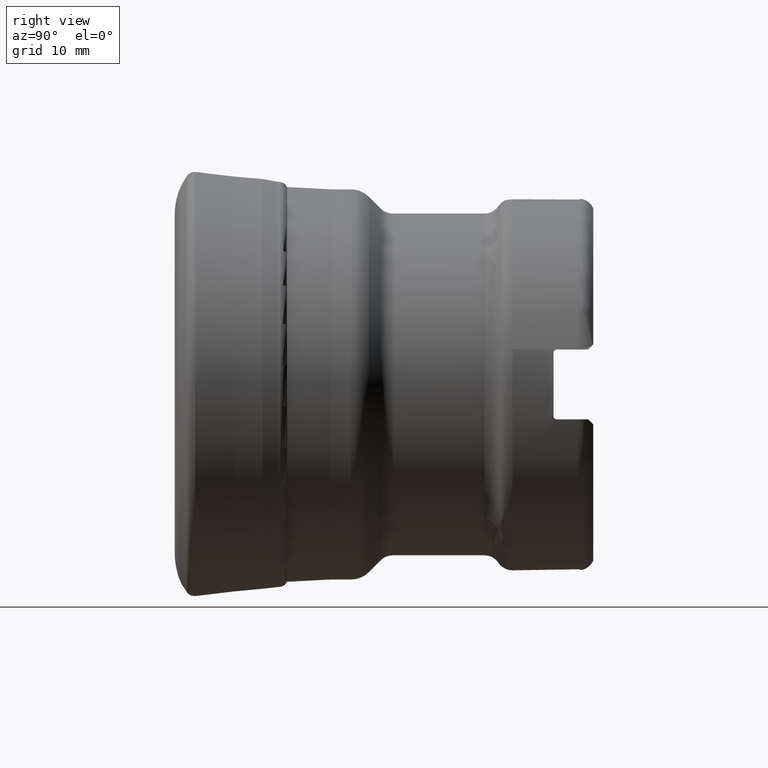
[diagram: clean part render]
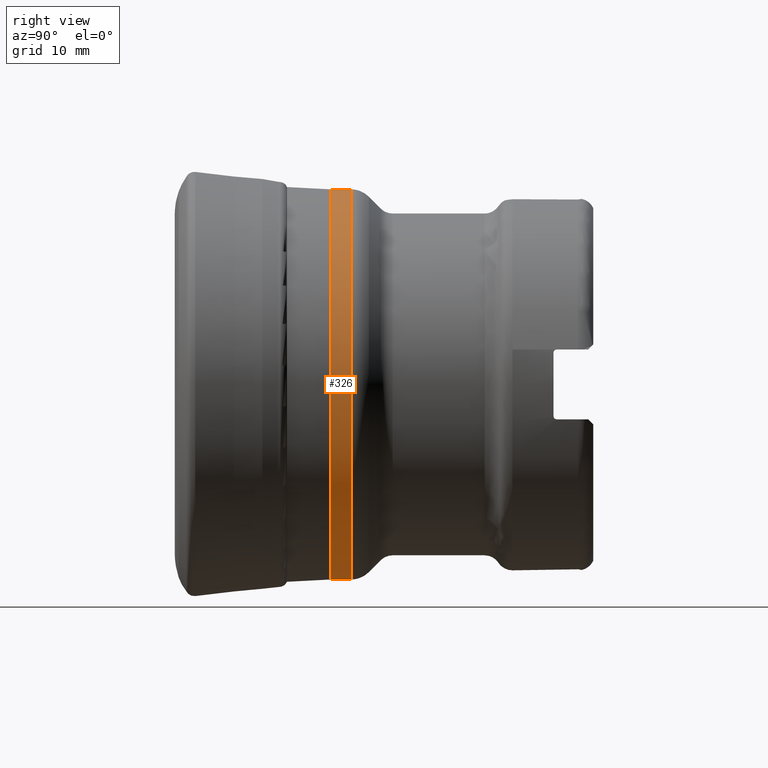
[diagram: same view with one face highlighted and labeled with its STEP entity id]
A machine part, right view. The second image highlights one B-rep face of the part: STEP entity #326.
In plain terms, the highlighted cylindrical surface (bore or boss wall) has radius 23.3183 mm, axis along (0, 1, 0).
Its self-contained STEP definition (entity closure, byte-faithful):
#326=ADVANCED_FACE('',(#411,#412),#396,.T.);
#396=CYLINDRICAL_SURFACE('',#1145,23.3183322357492);
#411=FACE_BOUND('',#511,.T.);
#412=FACE_BOUND('',#512,.T.);
#511=EDGE_LOOP('',(#654));
#512=EDGE_LOOP('',(#655));
#654=ORIENTED_EDGE('',*,*,#975,.T.);
#655=ORIENTED_EDGE('',*,*,#976,.T.);
#880=VERTEX_POINT('',#1698);
#881=VERTEX_POINT('',#1700);
#975=EDGE_CURVE('',#880,#880,#1074,.T.);
#976=EDGE_CURVE('',#881,#881,#1075,.T.);
#1074=CIRCLE('',#1143,23.3183322357492);
#1075=CIRCLE('',#1144,23.3183322357492);
#1143=AXIS2_PLACEMENT_3D('',#1697,#1276,#1277);
#1144=AXIS2_PLACEMENT_3D('',#1699,#1278,#1279);
#1145=AXIS2_PLACEMENT_3D('',#1701,#1280,#1281);
#1276=DIRECTION('',(0.,-1.,0.));
#1277=DIRECTION('',(0.,0.,-1.));
#1278=DIRECTION('',(0.,1.,0.));
#1279=DIRECTION('',(0.,0.,1.));
#1280=DIRECTION('',(0.,1.,0.));
#1281=DIRECTION('',(0.,0.,1.));
#1697=CARTESIAN_POINT('',(0.,21.0640270771286,0.));
#1698=CARTESIAN_POINT('',(0.,21.0640270771286,-23.3183322357492));
#1699=CARTESIAN_POINT('',(0.,18.620388964152,0.));
#1700=CARTESIAN_POINT('',(0.,18.620388964152,23.3183322357492));
#1701=CARTESIAN_POINT('',(0.,50.2,0.));